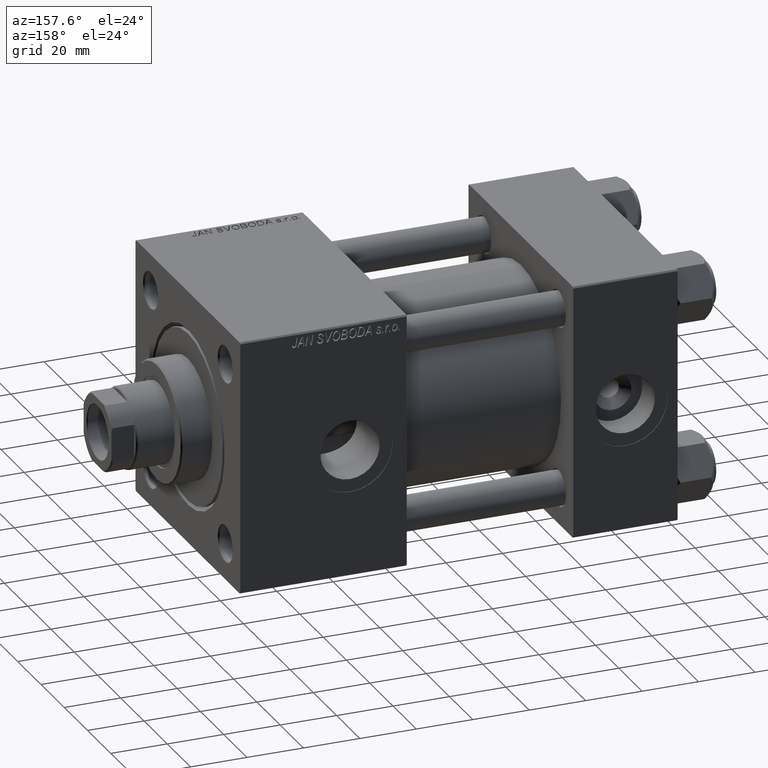
[diagram: clean part render]
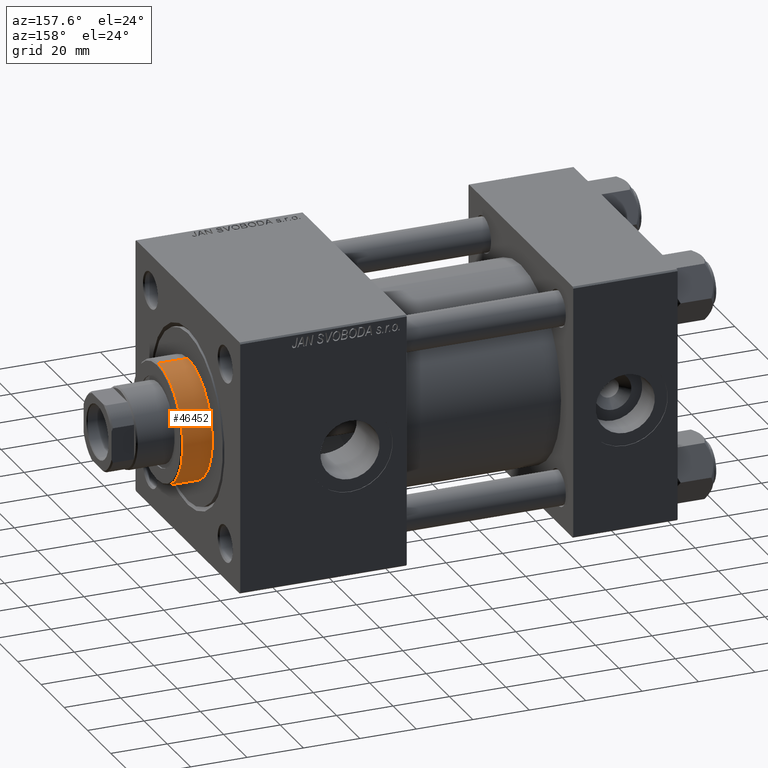
[diagram: same view with one face highlighted and labeled with its STEP entity id]
A machine part, auxiliary view. The second image highlights one B-rep face of the part: STEP entity #46452.
In plain terms, the highlighted cylindrical surface (partial cylindrical patch) has radius 21 mm, axis along (-1, -0, 0).
Its self-contained STEP definition (entity closure, byte-faithful):
#2156 = VERTEX_POINT ( 'NONE', #24225 ) ;
#2283 = LINE ( 'NONE', #5333, #7043 ) ;
#3496 = AXIS2_PLACEMENT_3D ( 'NONE', #10859, #18499, #49963 ) ;
#5333 = CARTESIAN_POINT ( 'NONE',  ( 21.00000000000000000, 2.571758278209441661E-15, 39.69999999999999574 ) ) ;
#7043 = VECTOR ( 'NONE', #9892, 1000.000000000000000 ) ;
#7697 = EDGE_CURVE ( 'NONE', #29674, #23371, #26865, .T. ) ;
#7816 = DIRECTION ( 'NONE',  ( -0.000000000000000000, -0.000000000000000000, -1.000000000000000000 ) ) ;
#8651 = ORIENTED_EDGE ( 'NONE', *, *, #35139, .T. ) ;
#9892 = DIRECTION ( 'NONE',  ( -0.000000000000000000, -0.000000000000000000, -1.000000000000000000 ) ) ;
#10859 = CARTESIAN_POINT ( 'NONE',  ( 0.000000000000000000, 0.000000000000000000, 39.69999999999999574 ) ) ;
#10880 = AXIS2_PLACEMENT_3D ( 'NONE', #30606, #19679, #19923 ) ;
#11146 = VERTEX_POINT ( 'NONE', #14040 ) ;
#11708 = CIRCLE ( 'NONE', #10880, 21.00000000000000000 ) ;
#14040 = CARTESIAN_POINT ( 'NONE',  ( 21.00000000000000000, 2.571758278209441661E-15, 39.19999999999999574 ) ) ;
#16906 = VECTOR ( 'NONE', #7816, 1000.000000000000000 ) ;
#18012 = ORIENTED_EDGE ( 'NONE', *, *, #7697, .F. ) ;
#18499 = DIRECTION ( 'NONE',  ( -0.000000000000000000, -0.000000000000000000, -1.000000000000000000 ) ) ;
#19679 = DIRECTION ( 'NONE',  ( 0.000000000000000000, 0.000000000000000000, 1.000000000000000000 ) ) ;
#19923 = DIRECTION ( 'NONE',  ( 1.000000000000000000, 0.000000000000000000, 0.000000000000000000 ) ) ;
#20024 = EDGE_LOOP ( 'NONE', ( #8651, #41222, #43040, #18012 ) ) ;
#20593 = EDGE_CURVE ( 'NONE', #2156, #23371, #11708, .T. ) ;
#23371 = VERTEX_POINT ( 'NONE', #27782 ) ;
#23382 = AXIS2_PLACEMENT_3D ( 'NONE', #33865, #25746, #37913 ) ;
#24225 = CARTESIAN_POINT ( 'NONE',  ( 21.00000000000000000, 2.571758278209441661E-15, 28.69999999999999929 ) ) ;
#25746 = DIRECTION ( 'NONE',  ( 0.000000000000000000, 0.000000000000000000, -1.000000000000000000 ) ) ;
#26609 = EDGE_CURVE ( 'NONE', #11146, #2156, #2283, .T. ) ;
#26865 = LINE ( 'NONE', #39541, #16906 ) ;
#27782 = CARTESIAN_POINT ( 'NONE',  ( -21.00000000000000000, 0.000000000000000000, 28.69999999999999929 ) ) ;
#29674 = VERTEX_POINT ( 'NONE', #49162 ) ;
#30606 = CARTESIAN_POINT ( 'NONE',  ( 0.000000000000000000, 0.000000000000000000, 28.69999999999999929 ) ) ;
#30906 = FACE_OUTER_BOUND ( 'NONE', #20024, .T. ) ;
#33865 = CARTESIAN_POINT ( 'NONE',  ( 0.000000000000000000, 0.000000000000000000, 39.19999999999999574 ) ) ;
#35139 = EDGE_CURVE ( 'NONE', #29674, #11146, #46064, .T. ) ;
#37913 = DIRECTION ( 'NONE',  ( 1.000000000000000000, 0.000000000000000000, 0.000000000000000000 ) ) ;
#39541 = CARTESIAN_POINT ( 'NONE',  ( -21.00000000000000000, 0.000000000000000000, 39.69999999999999574 ) ) ;
#41222 = ORIENTED_EDGE ( 'NONE', *, *, #26609, .T. ) ;
#43040 = ORIENTED_EDGE ( 'NONE', *, *, #20593, .T. ) ;
#46064 = CIRCLE ( 'NONE', #23382, 21.00000000000000000 ) ;
#46452 = ADVANCED_FACE ( 'NONE', ( #30906 ), #50211, .T. ) ;
#49162 = CARTESIAN_POINT ( 'NONE',  ( -21.00000000000000000, 0.000000000000000000, 39.19999999999999574 ) ) ;
#49963 = DIRECTION ( 'NONE',  ( -1.000000000000000000, 0.000000000000000000, 0.000000000000000000 ) ) ;
#50211 = CYLINDRICAL_SURFACE ( 'NONE', #3496, 21.00000000000000000 ) ;